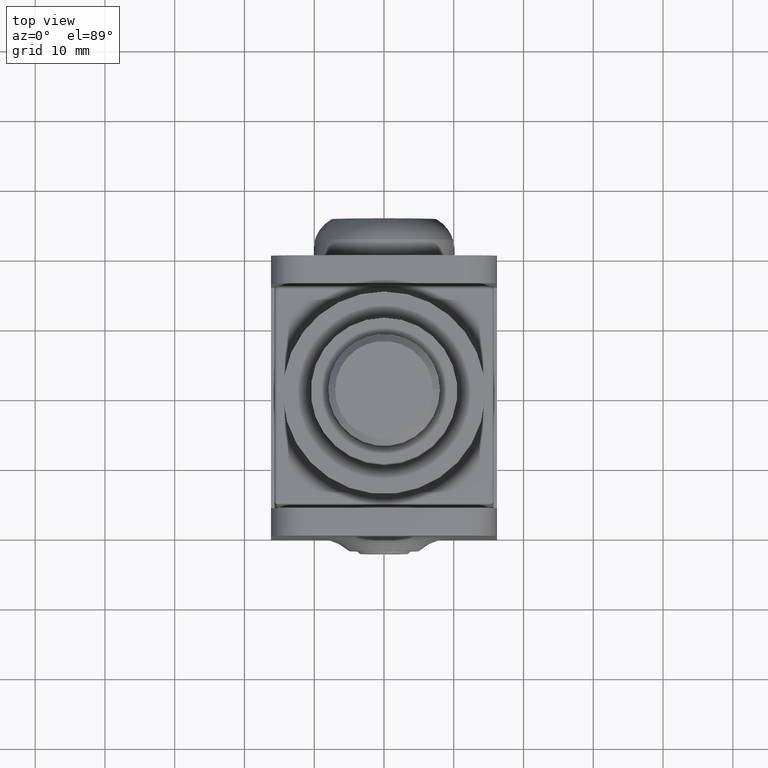
[diagram: clean part render]
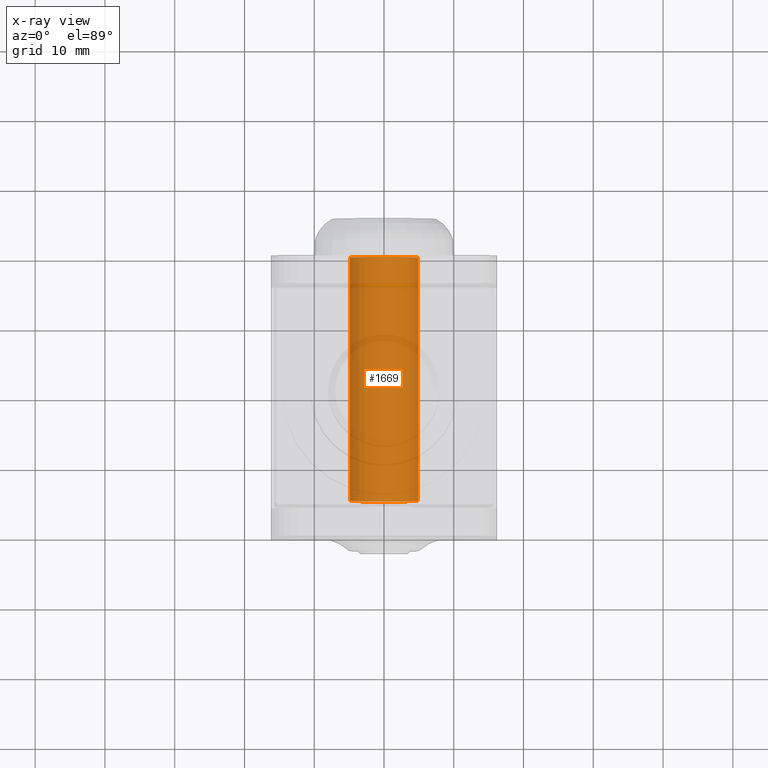
[diagram: x-ray — body ghosted, one internal face saturated and labeled with its STEP entity id]
A machine part, top view, then the same camera in x-ray: the body is ghosted and one INTERNAL B-rep face — a face not visible from any outside direction — is saturated and labeled: STEP entity #1669.
In plain terms, the highlighted cylindrical surface (bore or boss wall) has radius 4.9 mm, axis along (-0, -1, -0).
Its self-contained STEP definition (entity closure, byte-faithful):
#1352 = EDGE_LOOP ( 'NONE', ( #8296 ) ) ;
#1420 = CARTESIAN_POINT ( 'NONE',  ( 4.336808689942017736E-15, -24.00000000000000000, -3.851859888774471706E-31 ) ) ;
#1531 = CARTESIAN_POINT ( 'NONE',  ( 4.336808689942017736E-15, 18.49999999999999645, 1.925929944387235853E-31 ) ) ;
#1600 = VERTEX_POINT ( 'NONE', #4624 ) ;
#1669 = ADVANCED_FACE ( 'NONE', ( #12779, #2911 ), #10011, .T. ) ;
#2012 = AXIS2_PLACEMENT_3D ( 'NONE', #1531, #12414, #5260 ) ;
#2041 = DIRECTION ( 'NONE',  ( 0.000000000000000000, 0.000000000000000000, -1.000000000000000000 ) ) ;
#2911 = FACE_OUTER_BOUND ( 'NONE', #4244, .T. ) ;
#4244 = EDGE_LOOP ( 'NONE', ( #6022 ) ) ;
#4624 = CARTESIAN_POINT ( 'NONE',  ( 4.336808689942017736E-15, -16.40000000000000568, -4.900000000000000355 ) ) ;
#4653 = AXIS2_PLACEMENT_3D ( 'NONE', #1420, #8451, #7247 ) ;
#5260 = DIRECTION ( 'NONE',  ( 0.000000000000000000, 0.000000000000000000, -1.000000000000000000 ) ) ;
#5675 = CARTESIAN_POINT ( 'NONE',  ( 4.336808689942017736E-15, -16.40000000000000568, -3.851859888774471706E-31 ) ) ;
#5702 = VERTEX_POINT ( 'NONE', #15404 ) ;
#6022 = ORIENTED_EDGE ( 'NONE', *, *, #14785, .F. ) ;
#7247 = DIRECTION ( 'NONE',  ( 0.000000000000000000, 0.000000000000000000, -1.000000000000000000 ) ) ;
#7758 = EDGE_CURVE ( 'NONE', #5702, #5702, #8511, .T. ) ;
#8296 = ORIENTED_EDGE ( 'NONE', *, *, #7758, .T. ) ;
#8451 = DIRECTION ( 'NONE',  ( 4.911121358187451425E-32, -1.000000000000000000, -1.848892746611746419E-32 ) ) ;
#8511 = CIRCLE ( 'NONE', #2012, 4.899999999999989697 ) ;
#9166 = DIRECTION ( 'NONE',  ( 4.911121358187451425E-32, -1.000000000000000000, -1.848892746611746419E-32 ) ) ;
#9880 = CIRCLE ( 'NONE', #10593, 4.900000000000000355 ) ;
#10011 = CYLINDRICAL_SURFACE ( 'NONE', #4653, 4.899999999999995026 ) ;
#10593 = AXIS2_PLACEMENT_3D ( 'NONE', #5675, #9166, #2041 ) ;
#12414 = DIRECTION ( 'NONE',  ( 4.911121358187451425E-32, -1.000000000000000000, -1.848892746611746419E-32 ) ) ;
#12779 = FACE_OUTER_BOUND ( 'NONE', #1352, .T. ) ;
#14785 = EDGE_CURVE ( 'NONE', #1600, #1600, #9880, .T. ) ;
#15404 = CARTESIAN_POINT ( 'NONE',  ( 4.336808689942017736E-15, 18.49999999999999645, -4.899999999999989697 ) ) ;